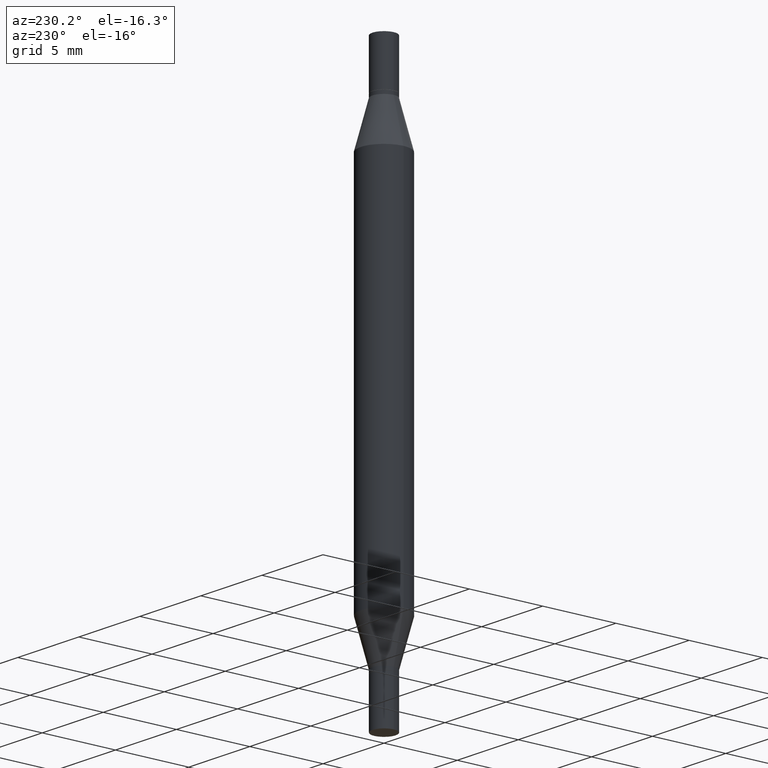
[diagram: clean part render]
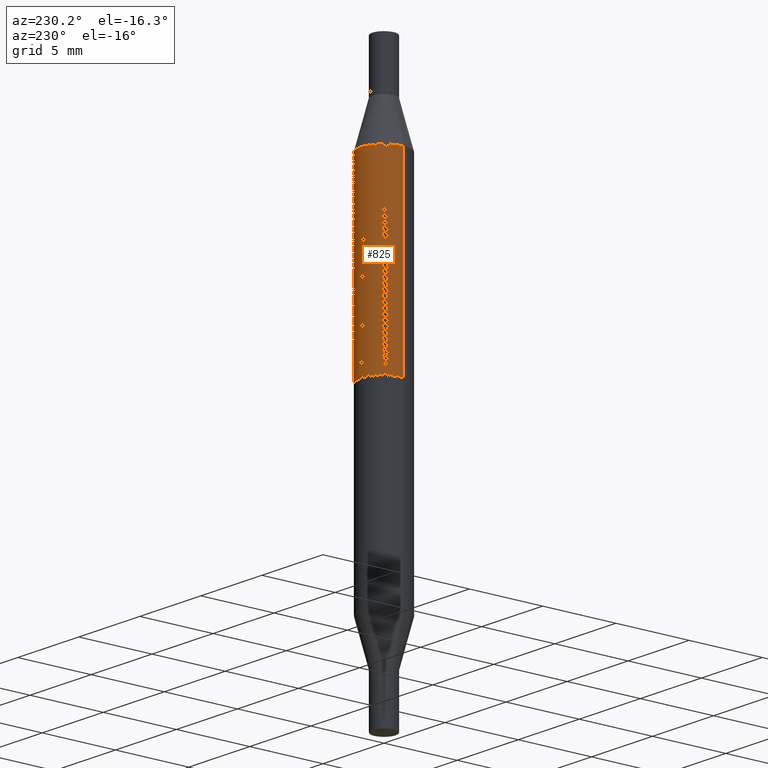
[diagram: same view with one face highlighted and labeled with its STEP entity id]
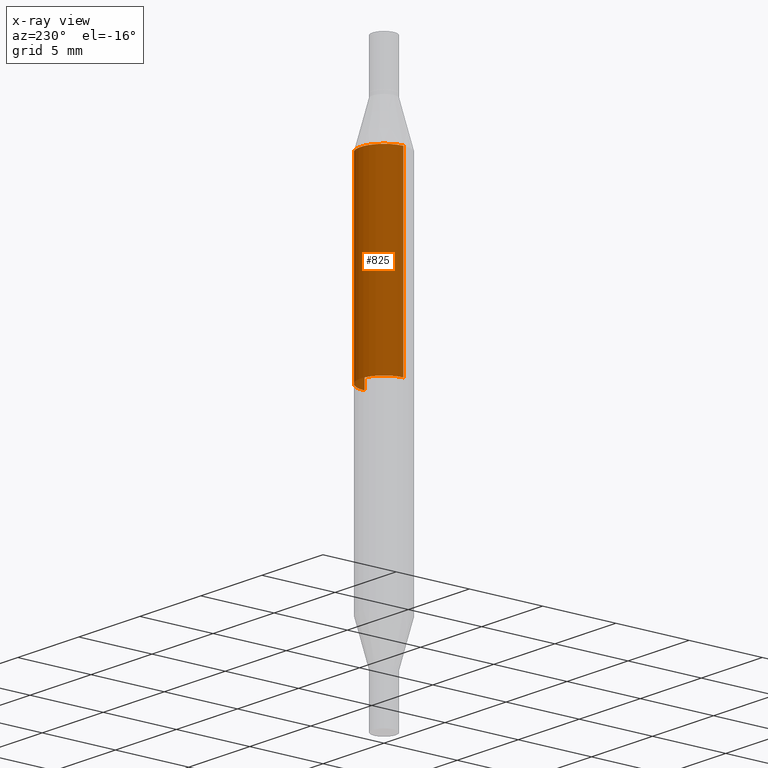
[diagram: x-ray of the same camera — body ghosted, the highlighted face saturated]
A machine part, auxiliary view. The second image highlights one B-rep face of the part: STEP entity #825.
The next image is the same camera in x-ray: the body ghosted, the highlighted face saturated — about 0% of this face is hidden behind the body in this view.
In plain terms, the highlighted cylindrical surface (edge-blend (fillet) strip) has radius 1.5875 mm, axis along (-0, -0, -1).
Its self-contained STEP definition (entity closure, byte-faithful):
#2 = VERTEX_POINT ( 'NONE', #670 ) ;
#38 = DIRECTION ( 'NONE',  ( -0.000000000000000000, -3.491643216902134830E-15, -1.000000000000000000 ) ) ;
#63 = DIRECTION ( 'NONE',  ( -2.445468806185136597E-29, -3.491805094961124077E-15, -1.000000000000000000 ) ) ;
#93 = EDGE_LOOP ( 'NONE', ( #498, #521, #976, #434 ) ) ;
#154 = CYLINDRICAL_SURFACE ( 'NONE', #978, 0.06250000000000000000 ) ;
#170 = DIRECTION ( 'NONE',  ( 2.445468806185136597E-29, 3.491805094961124077E-15, 1.000000000000000000 ) ) ;
#176 = CIRCLE ( 'NONE', #597, 0.06250000000000000000 ) ;
#273 = VERTEX_POINT ( 'NONE', #359 ) ;
#325 = CIRCLE ( 'NONE', #889, 0.06250000000000000000 ) ;
#359 = CARTESIAN_POINT ( 'NONE',  ( -0.06250000000000000000, -1.319718469204259197E-15, -0.7499999999999997780 ) ) ;
#373 = DIRECTION ( 'NONE',  ( -2.445468806185136877E-29, -3.491805094961123683E-15, -1.000000000000000000 ) ) ;
#413 = DIRECTION ( 'NONE',  ( -2.445468806185136877E-29, -3.491805094961123683E-15, -1.000000000000000000 ) ) ;
#434 = ORIENTED_EDGE ( 'NONE', *, *, #939, .F. ) ;
#447 = CARTESIAN_POINT ( 'NONE',  ( 0.000000000000000000, -5.237464825353201062E-15, -1.499999999999999556 ) ) ;
#454 = FACE_OUTER_BOUND ( 'NONE', #93, .T. ) ;
#457 = LINE ( 'NONE', #537, #584 ) ;
#498 = ORIENTED_EDGE ( 'NONE', *, *, #535, .F. ) ;
#521 = ORIENTED_EDGE ( 'NONE', *, *, #573, .F. ) ;
#535 = EDGE_CURVE ( 'NONE', #908, #273, #552, .T. ) ;
#537 = CARTESIAN_POINT ( 'NONE',  ( 0.06250000000000000000, -5.673899992708591942E-15, -1.499999999999999556 ) ) ;
#552 = LINE ( 'NONE', #935, #807 ) ;
#555 = DIRECTION ( 'NONE',  ( 0.000000000000000000, 1.000000000000000000, -4.370956789862821150E-15 ) ) ;
#573 = EDGE_CURVE ( 'NONE', #905, #908, #176, .T. ) ;
#584 = VECTOR ( 'NONE', #373, 39.37007874015748143 ) ;
#597 = AXIS2_PLACEMENT_3D ( 'NONE', #931, #170, #627 ) ;
#608 = DIRECTION ( 'NONE',  ( 1.000000000000000000, -6.982962677686262766E-15, 0.000000000000000000 ) ) ;
#627 = DIRECTION ( 'NONE',  ( 1.000000000000000000, -6.982962677686266711E-15, 0.000000000000000000 ) ) ;
#637 = CARTESIAN_POINT ( 'NONE',  ( -0.06250000000000000000, -4.496070591368817046E-16, -0.2516265877365266856 ) ) ;
#670 = CARTESIAN_POINT ( 'NONE',  ( 0.06250000000000000000, -2.184934761420371392E-15, -0.7499999999999997780 ) ) ;
#787 = CARTESIAN_POINT ( 'NONE',  ( 1.834101604638851887E-29, -2.618611004132358299E-15, -0.7499999999999997780 ) ) ;
#807 = VECTOR ( 'NONE', #413, 39.37007874015748143 ) ;
#819 = EDGE_CURVE ( 'NONE', #905, #2, #457, .T. ) ;
#825 = ADVANCED_FACE ( 'NONE', ( #454 ), #154, .T. ) ;
#842 = CARTESIAN_POINT ( 'NONE',  ( 0.06250000000000000000, -1.314823351352993998E-15, -0.2516265877365266856 ) ) ;
#889 = AXIS2_PLACEMENT_3D ( 'NONE', #787, #38, #555 ) ;
#905 = VERTEX_POINT ( 'NONE', #842 ) ;
#908 = VERTEX_POINT ( 'NONE', #637 ) ;
#931 = CARTESIAN_POINT ( 'NONE',  ( 3.052858238161220135E-29, -8.783881839976021314E-16, -0.2516265877365266856 ) ) ;
#935 = CARTESIAN_POINT ( 'NONE',  ( -0.06250000000000000000, -4.808683700492480339E-15, -1.499999999999999556 ) ) ;
#939 = EDGE_CURVE ( 'NONE', #273, #2, #325, .T. ) ;
#976 = ORIENTED_EDGE ( 'NONE', *, *, #819, .T. ) ;
#978 = AXIS2_PLACEMENT_3D ( 'NONE', #447, #63, #608 ) ;